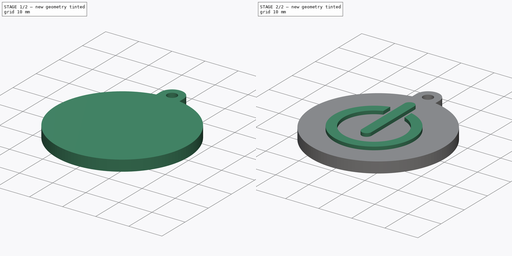
[diagram: build sequence overview — one tinted view per stage of 2, left to right]
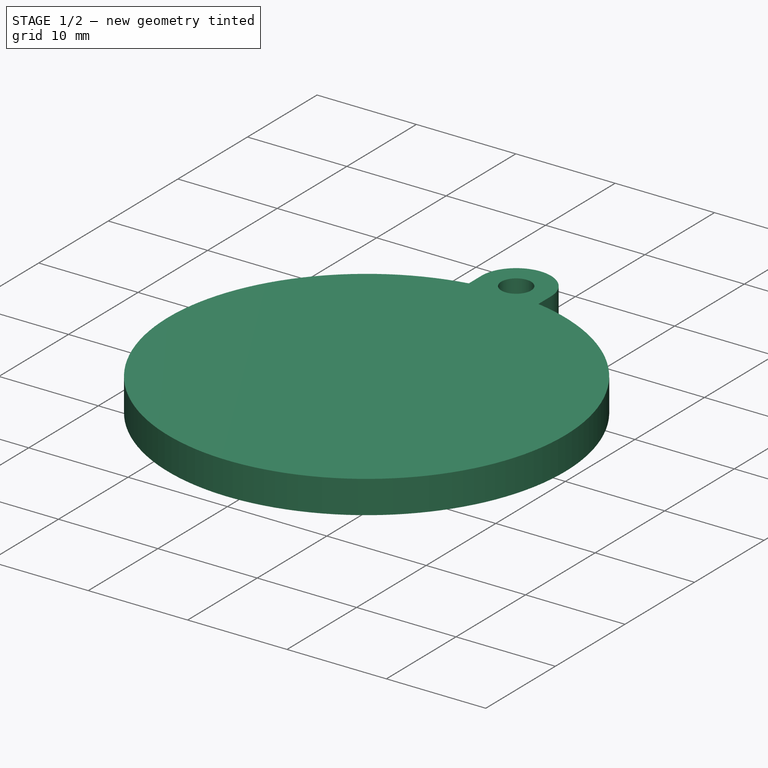
[diagram: stage 1 of 2 — iso view after this stage's code; geometry added in this stage tinted green]
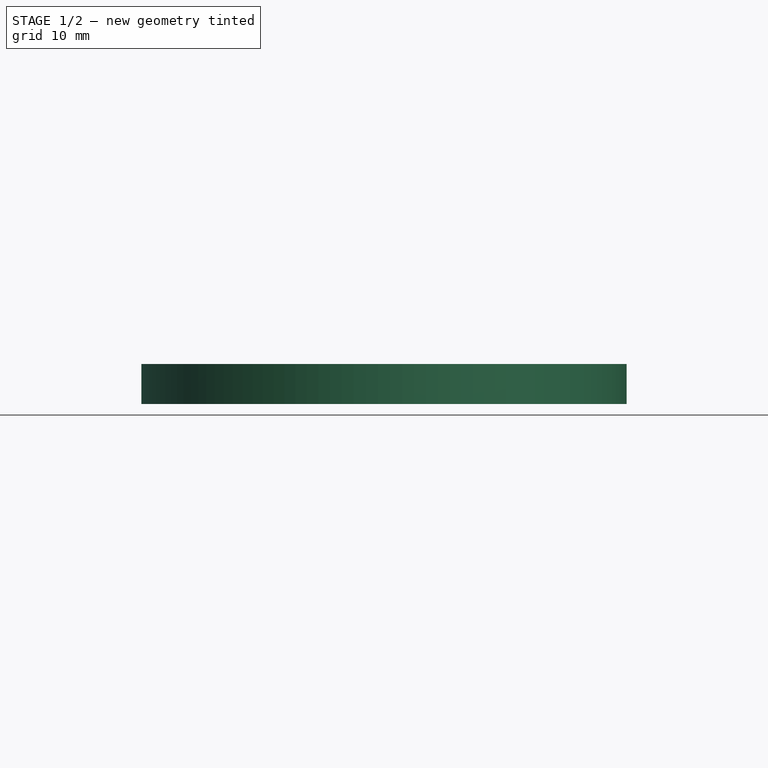
[diagram: stage 1 of 2 — front view after this stage's code; geometry added in this stage tinted green]
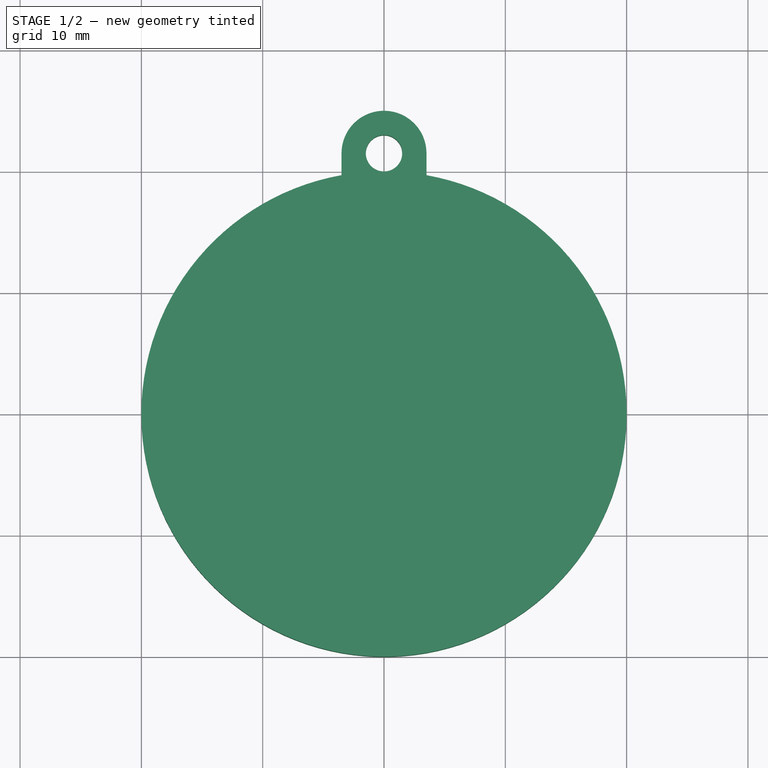
[diagram: stage 1 of 2 — top view after this stage's code; geometry added in this stage tinted green]
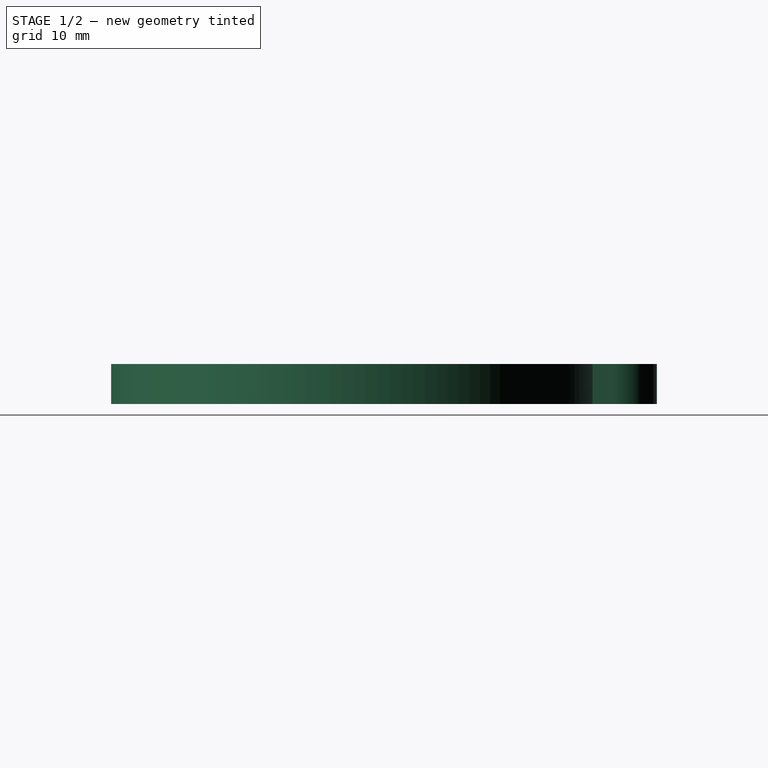
[diagram: stage 1 of 2 — right view after this stage's code; geometry added in this stage tinted green]
FCSTD DOCUMENT  (FreeCAD 0.18.4R)
Label: T5-ej3
License: CreativeCommons Attribution-ShareAlike
LicenseURL: http://creativecommons.org/licenses/by-sa/4.0/
objects: Sketcher::SketchObject×3, Part::Feature×2, PartDesign::Pad×2, App::DocumentObjectGroup×1, PartDesign::Pocket×1, PartDesign::Body×1
note: 12 computed .brp shape members not serialized (recipe doc carries the construction recipe); baked Part::Feature solids carry a one-line shape summary decoded from their .brp

FEATURE [Part::Feature] Sweep  label="key-ring-model-1"
  Placement = pos=(-1.2,30.25,1.6391) rot=(0.333333,0.881917,0.333333;1.69612rad)
  shape: bbox 3.31 x 27.02 x 26.33 mm, 4 faces (baked)
FEATURE [Part::Feature] Cut  label="key-model-1"
  Placement = pos=(-5.46976,36.53,0) rot=(0,0,1;0.517888rad)
  shape: bbox 49.82 x 36.6 x 2.3 mm, 44 faces (baked)
FEATURE [App::DocumentObjectGroup] Group  label="Assembly"
  Group = -> [Sweep,Cut]
FEATURE [Sketcher::SketchObject] Sketch001
  MapMode = 5
  Support = -> [XY_Plane]
  sketch-geometry (6):
    g0: Circle [constr] CenterX=2e-16 CenterY=21.5 CenterZ=0 NormalX=0 NormalY=0 NormalZ=1 AngleXU=0 Radius=1.5
    g1: ArcOfCircle CenterX=0 CenterY=0 CenterZ=0 NormalX=0 NormalY=0 NormalZ=1 AngleXU=0 Radius=20 StartAngle=1.74669 EndAngle=7.67809
    g2: ArcOfCircle CenterX=2e-16 CenterY=21.5 CenterZ=0 NormalX=0 NormalY=0 NormalZ=1 AngleXU=0 Radius=3.5 StartAngle=0.0133167 EndAngle=3.12828
    g3: LineSegment [constr] StartX=-3.49969 StartY=21.5466 StartZ=0 EndX=3.49969 EndY=21.5466 EndZ=0
    g4: LineSegment StartX=-3.49969 StartY=21.5466 StartZ=0 EndX=-3.49969 EndY=19.6914 EndZ=0
    g5: LineSegment StartX=3.49969 StartY=21.5466 StartZ=0 EndX=3.49969 EndY=19.6914 EndZ=0
  constraints (15):
    c: DistanceY(g-1,g0) = 21.5
    c: Radius(g0) = 1.5
    c: Coincident(g1,g-1)
    c: Radius(g1) = 20
    c: Coincident(g2,g0)
    c: Radius(g2) = 3.5
    c: Symmetric(g3,g3,g-2)
    c: Coincident(g2,g3)
    c: Coincident(g2,g3)
    c: Vertical(g5)
    c: Coincident(g4,g2)
    c: Coincident(g5,g2)
    c: Vertical(g4)
    c: Coincident(g5,g1)
    c: Coincident(g4,g1)
FEATURE [PartDesign::Pad] Pad
  Length = 3.3
  Length2 = 100
  Profile = -> Sketch001
  Refine = true
  Type = 0
FEATURE [Sketcher::SketchObject] Sketch
  MapMode = 5
  Placement = pos=(0,0,3.3) rot=(0,0,1;0rad)
  Support = -> [Pad]
  sketch-geometry (1):
    g0: Circle CenterX=0 CenterY=21.5 CenterZ=0 NormalX=0 NormalY=0 NormalZ=1 AngleXU=0 Radius=1.5
  constraints (3):
    c: PointOnObject(g0,g-2)
    c: Radius(g0) = 1.5
    c: DistanceY(g-1,g0) = 21.5
FEATURE [PartDesign::Pocket] Pocket
  BaseFeature = -> Pad
  Length = 5
  Length2 = 100
  Profile = -> Sketch
  Refine = true
  Type = 1
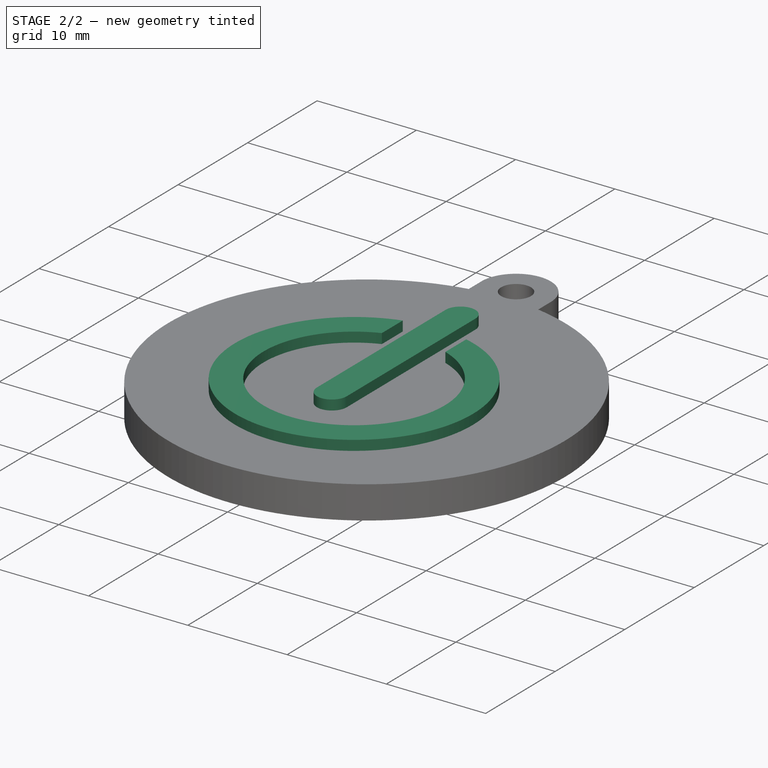
[diagram: stage 2 of 2 — iso view after this stage's code; geometry added in this stage tinted green]
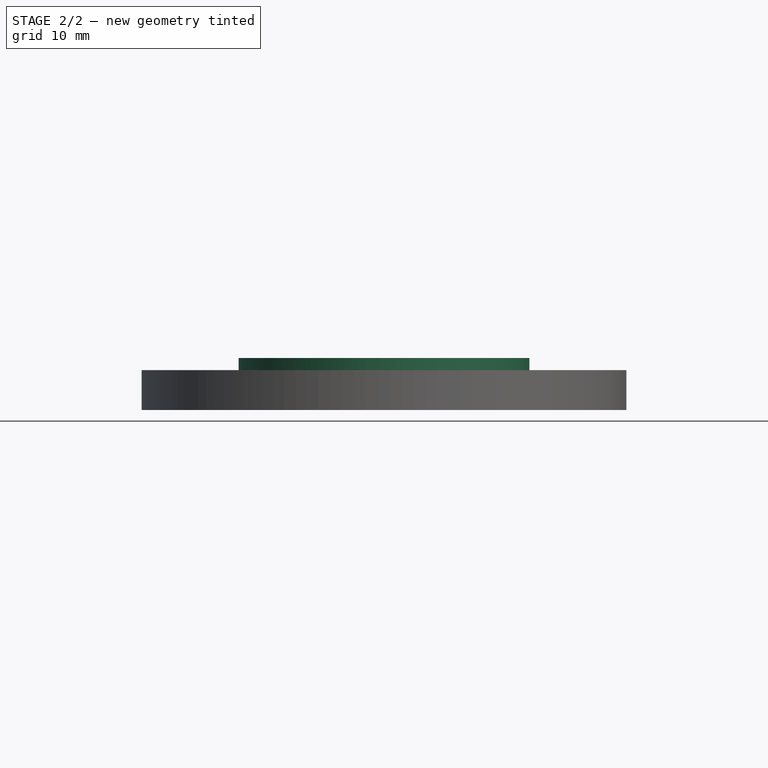
[diagram: stage 2 of 2 — front view after this stage's code; geometry added in this stage tinted green]
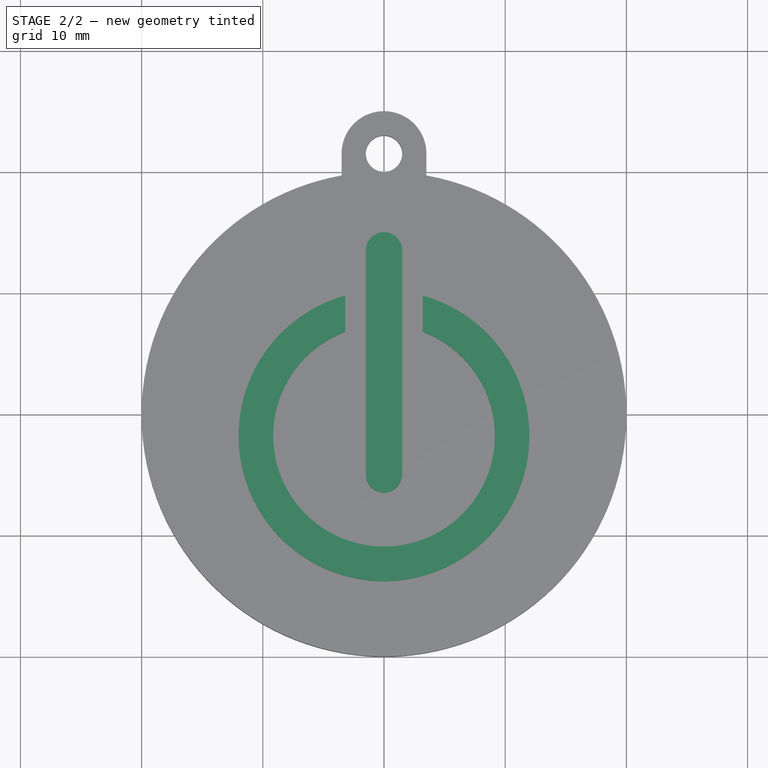
[diagram: stage 2 of 2 — top view after this stage's code; geometry added in this stage tinted green]
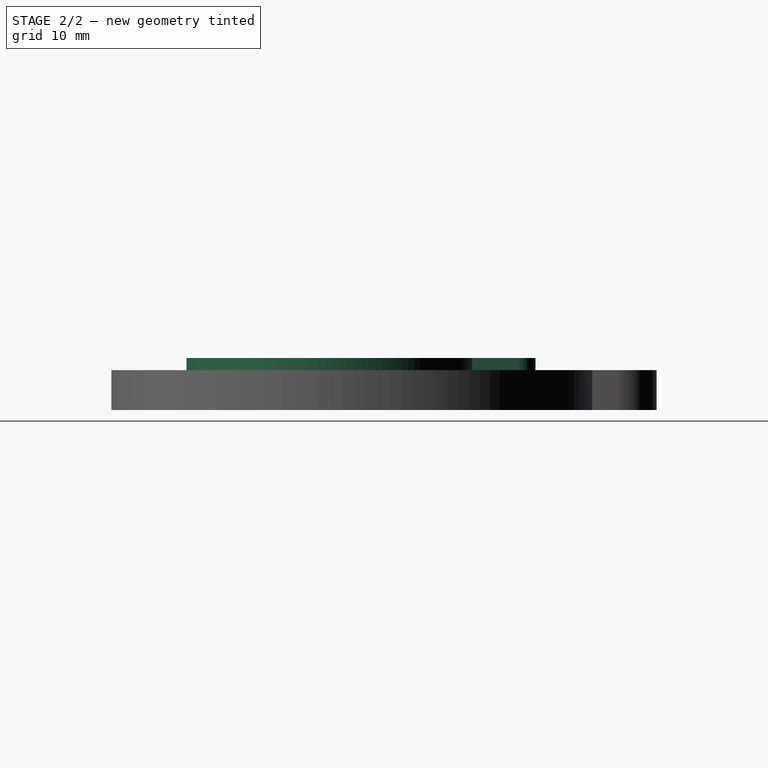
[diagram: stage 2 of 2 — right view after this stage's code; geometry added in this stage tinted green]
FEATURE [Sketcher::SketchObject] Sketch002
  MapMode = 5
  Placement = pos=(0,0,3.3) rot=(0,0,1;0rad)
  Support = -> [Pocket]
  sketch-geometry (13):
    g0: LineSegment StartX=1.5 StartY=13.5 StartZ=0 EndX=1.5 EndY=-5 EndZ=0
    g1: LineSegment StartX=-1.5 StartY=13.5 StartZ=0 EndX=-1.5 EndY=-5 EndZ=0
    g2: LineSegment [constr] StartX=-5.32516 StartY=-5 StartZ=0 EndX=5.80059 EndY=-5 EndZ=0
    g3: LineSegment [constr] StartX=-4.87347 StartY=13.5 StartZ=0 EndX=5.26379 EndY=13.5 EndZ=0
    g4: ArcOfCircle CenterX=0 CenterY=-5 CenterZ=0 NormalX=0 NormalY=0 NormalZ=1 AngleXU=0 Radius=1.5 StartAngle=3.14159 EndAngle=6.28319
    g5: ArcOfCircle CenterX=0 CenterY=13.5 CenterZ=0 NormalX=0 NormalY=0 NormalZ=1 AngleXU=0 Radius=1.5 StartAngle=0 EndAngle=3.14159
    g6: LineSegment StartX=-3.2 StartY=6.76547 StartZ=0 EndX=-3.2 EndY=9.76547 EndZ=0
    g7: LineSegment StartX=3.2 StartY=9.76547 StartZ=0 EndX=3.2 EndY=6.76547 EndZ=0
    g8: LineSegment [constr] StartX=-2.80082 StartY=-1.8 StartZ=0 EndX=3.66143 EndY=-1.8 EndZ=0
    g9: ArcOfCircle CenterX=0 CenterY=-1.8 CenterZ=0 NormalX=0 NormalY=0 NormalZ=1 AngleXU=0 Radius=12 StartAngle=1.84073 EndAngle=7.58405
    g10: LineSegment [constr] StartX=8.00538 StartY=9.76547 StartZ=0 EndX=-5.88312 EndY=9.76547 EndZ=0
    g11: LineSegment [constr] StartX=-5.38979 StartY=6.76547 StartZ=0 EndX=6.93514 EndY=6.76547 EndZ=0
    g12: ArcOfCircle CenterX=0 CenterY=-1.8 CenterZ=0 NormalX=0 NormalY=0 NormalZ=1 AngleXU=0 Radius=9.1437 StartAngle=1.92833 EndAngle=7.49644
  constraints (40):
    c: Vertical(g0)
    c: Vertical(g1)
    c: DistanceY(g1,g1) = 18.5
    c: Equal(g1,g0)
    c: Symmetric(g0,g1,g-2)
    c: Horizontal(g2)
    c: DistanceY(g2,g-1) = 5
    c: PointOnObject(g0,g2)
    c: DistanceX(g1,g0) = 3
    c: Horizontal(g3)
    c: PointOnObject(g0,g3)
    c: Coincident(g4,g0)
    c: PointOnObject(g4,g-2)
    c: PointOnObject(g4,g2)
    c: PointOnObject(g4,g2)
    c: Coincident(g5,g1)
    c: PointOnObject(g5,g3)
    c: PointOnObject(g5,g-2)
    c: PointOnObject(g5,g3)
    c: Vertical(g6)
    c: DistanceY(g6,g6) = 3
    c: DistanceX(g6,g1) = 1.7
    c: Vertical(g7)
    c: Equal(g7,g6)
    c: Symmetric(g7,g6,g-2)
    c: Horizontal(g8)
    c: DistanceY(g8,g-1) = 1.8
    c: PointOnObject(g9,g8)
    c: PointOnObject(g9,g-2)
    c: Radius(g9) = 12
    c: PointOnObject(g9,g7)
    c: Horizontal(g10)
    c: PointOnObject(g7,g10)
    c: PointOnObject(g9,g10)
    c: Horizontal(g11)
    c: PointOnObject(g7,g11)
    c: PointOnObject(g9,g6)
    c: Coincident(g12,g9)
    c: Coincident(g12,g7)
    c: PointOnObject(g12,g11)
FEATURE [PartDesign::Pad] Pad001
  BaseFeature = -> Pocket
  Length = 1
  Length2 = 100
  Profile = -> Sketch002
  Refine = true
  Type = 0
FEATURE [PartDesign::Body] Body
  Group = -> [Sketch001,Pad,Sketch,Pocket,Sketch002,Pad001]
  Origin = -> Origin
  Tip = -> Pad001
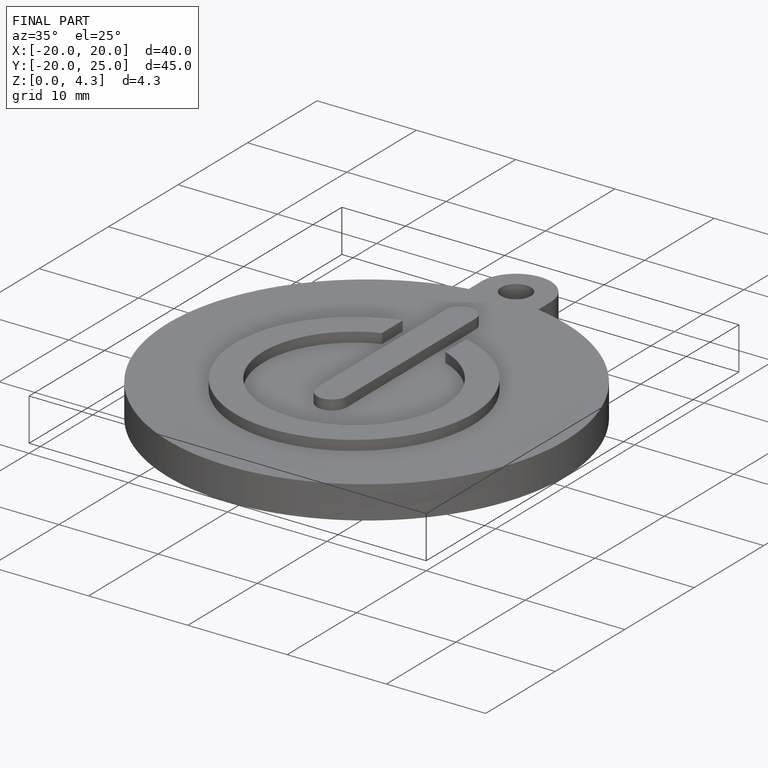
[diagram: finished part — iso view with bounding-box wireframe]
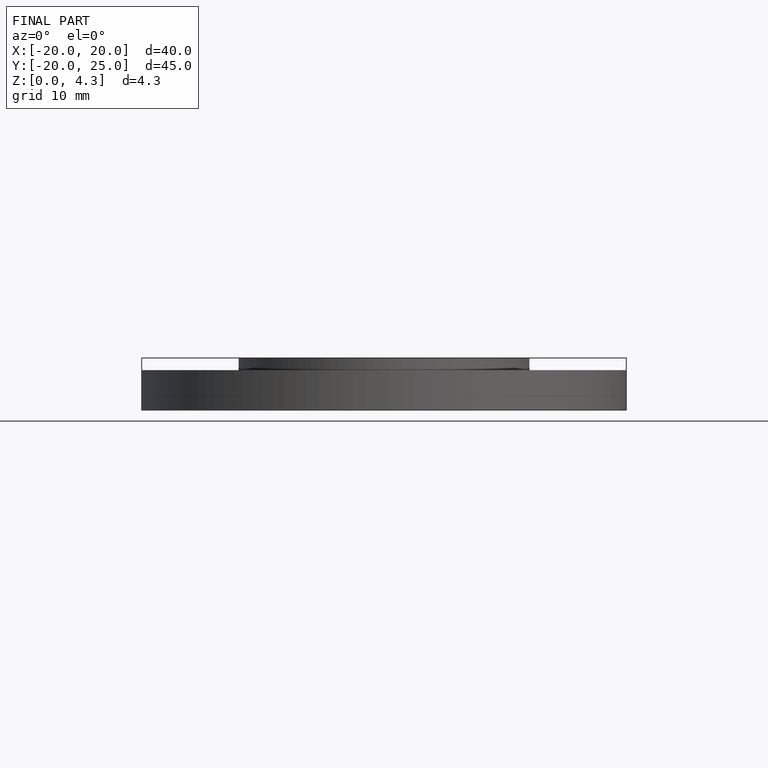
[diagram: finished part — front view with bounding-box wireframe]
